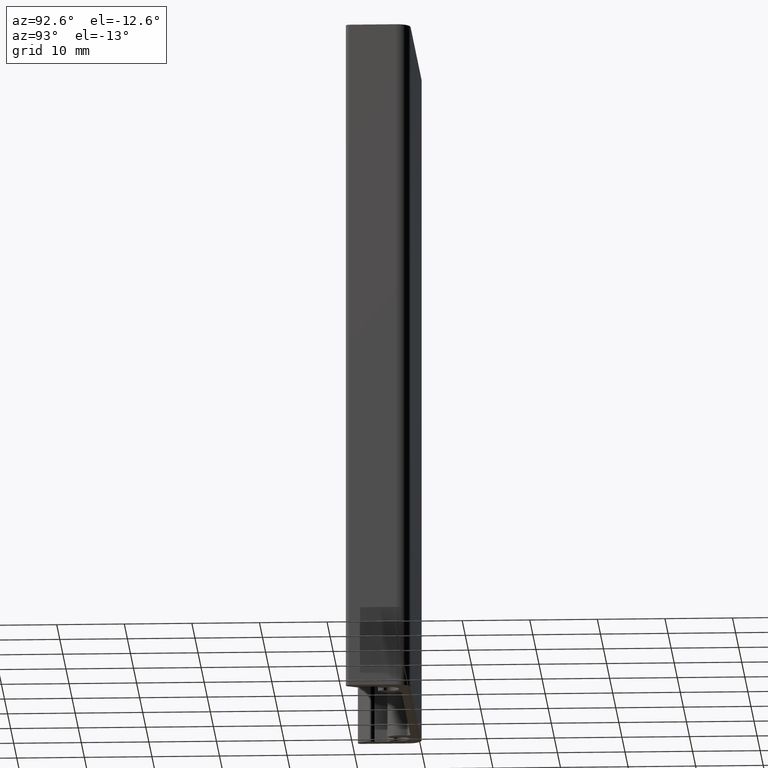
[diagram: clean part render]
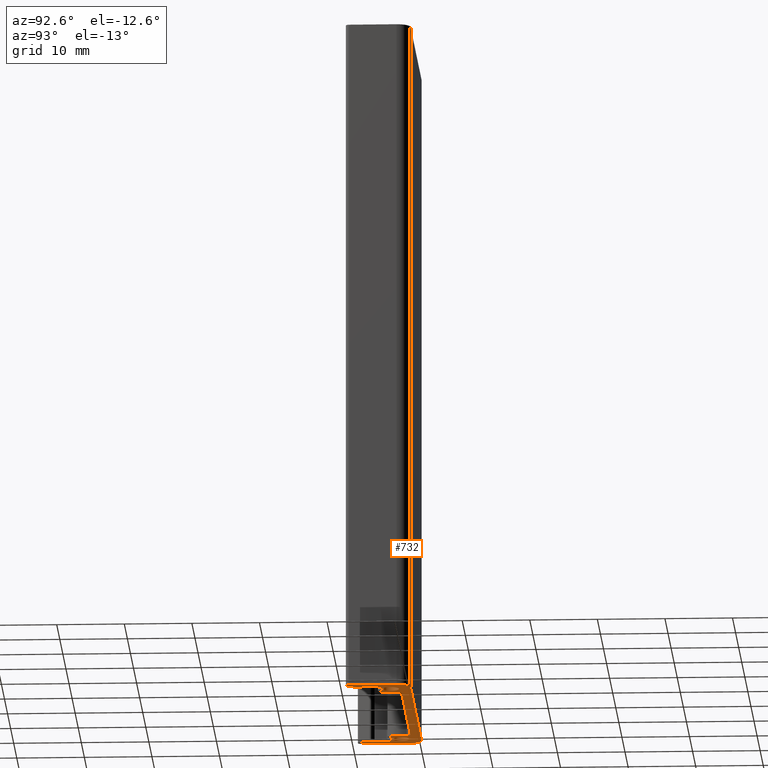
[diagram: same view with one face highlighted and labeled with its STEP entity id]
A machine part, auxiliary view. The second image highlights one B-rep face of the part: STEP entity #732.
In plain terms, the highlighted planar face has unit normal (0, 0, 1).
Its self-contained STEP definition (entity closure, byte-faithful):
#28=PLANE('',#816);
#66=FACE_OUTER_BOUND('',#104,.T.);
#104=EDGE_LOOP('',(#599,#600,#601,#602,#603,#604,#605,#606,#607,#608,#609,
#610,#611,#612,#613,#614,#615,#616,#617,#618,#619,#620,#621,#622,#623,#624,
#625,#626,#627,#628,#629,#630,#631,#632,#633,#634));
#112=LINE('',#1075,#176);
#118=LINE('',#1099,#182);
#124=LINE('',#1123,#188);
#129=LINE('',#1141,#193);
#132=LINE('',#1147,#196);
#136=LINE('',#1159,#200);
#140=LINE('',#1171,#204);
#144=LINE('',#1178,#208);
#150=LINE('',#1202,#214);
#155=LINE('',#1220,#219);
#158=LINE('',#1226,#222);
#162=LINE('',#1238,#226);
#166=LINE('',#1250,#230);
#169=LINE('',#1264,#233);
#176=VECTOR('',#846,28.3431457504998);
#182=VECTOR('',#872,0.415801040542399);
#188=VECTOR('',#898,0.19038011818812);
#193=VECTOR('',#917,1.77783328947104);
#196=VECTOR('',#922,0.582842712490683);
#200=VECTOR('',#934,1.68430994774901);
#204=VECTOR('',#946,6.99999999999857);
#208=VECTOR('',#952,0.415801040537529);
#214=VECTOR('',#978,0.190380118148697);
#219=VECTOR('',#997,1.77783328945031);
#222=VECTOR('',#1002,0.582842712467854);
#226=VECTOR('',#1014,1.68430994772338);
#230=VECTOR('',#1026,6.99999999998679);
#233=VECTOR('',#1043,36.);
#236=CIRCLE('',#739,0.5);
#238=CIRCLE('',#742,2.50000000000608);
#240=CIRCLE('',#745,0.5);
#242=CIRCLE('',#749,0.5);
#244=CIRCLE('',#752,2.50000000000608);
#246=CIRCLE('',#755,0.5);
#248=CIRCLE('',#759,0.299999999999853);
#250=CIRCLE('',#762,1.24999999999524);
#252=CIRCLE('',#765,0.299999999999853);
#254=CIRCLE('',#769,0.499999999999971);
#256=CIRCLE('',#772,0.5);
#258=CIRCLE('',#777,0.299999999999853);
#260=CIRCLE('',#781,0.5);
#262=CIRCLE('',#786,0.299999999999853);
#264=CIRCLE('',#789,1.24999999999524);
#266=CIRCLE('',#792,0.299999999999853);
#268=CIRCLE('',#796,0.5);
#270=CIRCLE('',#799,0.5);
#272=CIRCLE('',#804,0.299999999999853);
#274=CIRCLE('',#808,0.5);
#276=CIRCLE('',#812,2.);
#278=CIRCLE('',#815,2.);
#281=VERTEX_POINT('',#1054);
#282=VERTEX_POINT('',#1056);
#284=VERTEX_POINT('',#1062);
#286=VERTEX_POINT('',#1068);
#288=VERTEX_POINT('',#1074);
#290=VERTEX_POINT('',#1080);
#292=VERTEX_POINT('',#1086);
#294=VERTEX_POINT('',#1092);
#296=VERTEX_POINT('',#1098);
#298=VERTEX_POINT('',#1104);
#300=VERTEX_POINT('',#1110);
#302=VERTEX_POINT('',#1116);
#304=VERTEX_POINT('',#1122);
#306=VERTEX_POINT('',#1128);
#308=VERTEX_POINT('',#1134);
#310=VERTEX_POINT('',#1140);
#312=VERTEX_POINT('',#1146);
#314=VERTEX_POINT('',#1152);
#316=VERTEX_POINT('',#1158);
#318=VERTEX_POINT('',#1164);
#320=VERTEX_POINT('',#1170);
#322=VERTEX_POINT('',#1176);
#324=VERTEX_POINT('',#1182);
#326=VERTEX_POINT('',#1188);
#328=VERTEX_POINT('',#1194);
#330=VERTEX_POINT('',#1200);
#332=VERTEX_POINT('',#1206);
#334=VERTEX_POINT('',#1212);
#336=VERTEX_POINT('',#1218);
#338=VERTEX_POINT('',#1224);
#340=VERTEX_POINT('',#1230);
#342=VERTEX_POINT('',#1236);
#344=VERTEX_POINT('',#1242);
#346=VERTEX_POINT('',#1248);
#348=VERTEX_POINT('',#1254);
#350=VERTEX_POINT('',#1260);
#353=EDGE_CURVE('',#282,#281,#236,.T.);
#356=EDGE_CURVE('',#284,#282,#238,.T.);
#359=EDGE_CURVE('',#286,#284,#240,.T.);
#362=EDGE_CURVE('',#288,#286,#112,.T.);
#365=EDGE_CURVE('',#290,#288,#242,.T.);
#368=EDGE_CURVE('',#292,#290,#244,.T.);
#371=EDGE_CURVE('',#294,#292,#246,.T.);
#374=EDGE_CURVE('',#296,#294,#118,.T.);
#377=EDGE_CURVE('',#298,#296,#248,.T.);
#380=EDGE_CURVE('',#300,#298,#250,.T.);
#383=EDGE_CURVE('',#302,#300,#252,.T.);
#386=EDGE_CURVE('',#304,#302,#124,.T.);
#389=EDGE_CURVE('',#306,#304,#254,.T.);
#392=EDGE_CURVE('',#308,#306,#256,.T.);
#395=EDGE_CURVE('',#310,#308,#129,.T.);
#398=EDGE_CURVE('',#312,#310,#132,.T.);
#401=EDGE_CURVE('',#314,#312,#258,.T.);
#404=EDGE_CURVE('',#316,#314,#136,.T.);
#407=EDGE_CURVE('',#318,#316,#260,.T.);
#410=EDGE_CURVE('',#320,#318,#140,.T.);
#414=EDGE_CURVE('',#281,#322,#144,.T.);
#417=EDGE_CURVE('',#322,#324,#262,.T.);
#420=EDGE_CURVE('',#324,#326,#264,.T.);
#423=EDGE_CURVE('',#326,#328,#266,.T.);
#426=EDGE_CURVE('',#328,#330,#150,.T.);
#429=EDGE_CURVE('',#330,#332,#268,.T.);
#432=EDGE_CURVE('',#332,#334,#270,.T.);
#435=EDGE_CURVE('',#334,#336,#155,.T.);
#438=EDGE_CURVE('',#336,#338,#158,.T.);
#441=EDGE_CURVE('',#338,#340,#272,.T.);
#444=EDGE_CURVE('',#340,#342,#162,.T.);
#447=EDGE_CURVE('',#342,#344,#274,.T.);
#450=EDGE_CURVE('',#344,#346,#166,.T.);
#453=EDGE_CURVE('',#346,#348,#276,.T.);
#455=EDGE_CURVE('',#350,#320,#278,.T.);
#457=EDGE_CURVE('',#348,#350,#169,.T.);
#599=ORIENTED_EDGE('',*,*,#455,.T.);
#600=ORIENTED_EDGE('',*,*,#410,.T.);
#601=ORIENTED_EDGE('',*,*,#407,.T.);
#602=ORIENTED_EDGE('',*,*,#404,.T.);
#603=ORIENTED_EDGE('',*,*,#401,.T.);
#604=ORIENTED_EDGE('',*,*,#398,.T.);
#605=ORIENTED_EDGE('',*,*,#395,.T.);
#606=ORIENTED_EDGE('',*,*,#392,.T.);
#607=ORIENTED_EDGE('',*,*,#389,.T.);
#608=ORIENTED_EDGE('',*,*,#386,.T.);
#609=ORIENTED_EDGE('',*,*,#383,.T.);
#610=ORIENTED_EDGE('',*,*,#380,.T.);
#611=ORIENTED_EDGE('',*,*,#377,.T.);
#612=ORIENTED_EDGE('',*,*,#374,.T.);
#613=ORIENTED_EDGE('',*,*,#371,.T.);
#614=ORIENTED_EDGE('',*,*,#368,.T.);
#615=ORIENTED_EDGE('',*,*,#365,.T.);
#616=ORIENTED_EDGE('',*,*,#362,.T.);
#617=ORIENTED_EDGE('',*,*,#359,.T.);
#618=ORIENTED_EDGE('',*,*,#356,.T.);
#619=ORIENTED_EDGE('',*,*,#353,.T.);
#620=ORIENTED_EDGE('',*,*,#414,.T.);
#621=ORIENTED_EDGE('',*,*,#417,.T.);
#622=ORIENTED_EDGE('',*,*,#420,.T.);
#623=ORIENTED_EDGE('',*,*,#423,.T.);
#624=ORIENTED_EDGE('',*,*,#426,.T.);
#625=ORIENTED_EDGE('',*,*,#429,.T.);
#626=ORIENTED_EDGE('',*,*,#432,.T.);
#627=ORIENTED_EDGE('',*,*,#435,.T.);
#628=ORIENTED_EDGE('',*,*,#438,.T.);
#629=ORIENTED_EDGE('',*,*,#441,.T.);
#630=ORIENTED_EDGE('',*,*,#444,.T.);
#631=ORIENTED_EDGE('',*,*,#447,.T.);
#632=ORIENTED_EDGE('',*,*,#450,.T.);
#633=ORIENTED_EDGE('',*,*,#453,.T.);
#634=ORIENTED_EDGE('',*,*,#457,.T.);
#732=ADVANCED_FACE('',(#66),#28,.F.);
#739=AXIS2_PLACEMENT_3D('',#1057,#826,#827);
#742=AXIS2_PLACEMENT_3D('',#1063,#833,#834);
#745=AXIS2_PLACEMENT_3D('',#1069,#840,#841);
#749=AXIS2_PLACEMENT_3D('',#1081,#852,#853);
#752=AXIS2_PLACEMENT_3D('',#1087,#859,#860);
#755=AXIS2_PLACEMENT_3D('',#1093,#866,#867);
#759=AXIS2_PLACEMENT_3D('',#1105,#878,#879);
#762=AXIS2_PLACEMENT_3D('',#1111,#885,#886);
#765=AXIS2_PLACEMENT_3D('',#1117,#892,#893);
#769=AXIS2_PLACEMENT_3D('',#1129,#904,#905);
#772=AXIS2_PLACEMENT_3D('',#1135,#911,#912);
#777=AXIS2_PLACEMENT_3D('',#1153,#928,#929);
#781=AXIS2_PLACEMENT_3D('',#1165,#940,#941);
#786=AXIS2_PLACEMENT_3D('',#1184,#958,#959);
#789=AXIS2_PLACEMENT_3D('',#1190,#965,#966);
#792=AXIS2_PLACEMENT_3D('',#1196,#972,#973);
#796=AXIS2_PLACEMENT_3D('',#1208,#984,#985);
#799=AXIS2_PLACEMENT_3D('',#1214,#991,#992);
#804=AXIS2_PLACEMENT_3D('',#1232,#1008,#1009);
#808=AXIS2_PLACEMENT_3D('',#1244,#1020,#1021);
#812=AXIS2_PLACEMENT_3D('',#1256,#1032,#1033);
#815=AXIS2_PLACEMENT_3D('',#1261,#1038,#1039);
#816=AXIS2_PLACEMENT_3D('',#1263,#1041,#1042);
#826=DIRECTION('center_axis',(0.,0.,-1.));
#827=DIRECTION('ref_axis',(0.86602540378473,0.499999999999496,0.));
#833=DIRECTION('center_axis',(0.,0.,-1.));
#834=DIRECTION('ref_axis',(-0.70062926923846,0.713525491546295,0.));
#840=DIRECTION('center_axis',(0.,0.,1.));
#841=DIRECTION('ref_axis',(4.44089209850064E-15,1.,0.));
#846=DIRECTION('',(-1.,2.64794448454392E-14,0.));
#852=DIRECTION('center_axis',(0.,0.,1.));
#853=DIRECTION('ref_axis',(0.942809041595373,-0.333333333295689,0.));
#859=DIRECTION('center_axis',(0.,0.,-1.));
#860=DIRECTION('ref_axis',(0.942809041595373,-0.333333333295689,0.));
#866=DIRECTION('center_axis',(0.,0.,-1.));
#867=DIRECTION('ref_axis',(0.700629269209054,0.713525491575169,0.));
#872=DIRECTION('',(-0.49999999999958,-0.866025403784681,0.));
#878=DIRECTION('center_axis',(0.,0.,-1.));
#879=DIRECTION('ref_axis',(-0.866025403784678,0.499999999999585,0.));
#885=DIRECTION('center_axis',(0.,0.,1.));
#886=DIRECTION('ref_axis',(0.658163185407506,-0.752875302672524,0.));
#892=DIRECTION('center_axis',(0.,0.,-1.));
#893=DIRECTION('ref_axis',(0.658163185407506,-0.752875302672524,0.));
#898=DIRECTION('',(-0.499999999999504,0.866025403784725,0.));
#904=DIRECTION('center_axis',(0.,0.,-1.));
#905=DIRECTION('ref_axis',(0.866025403784728,0.499999999999498,0.));
#911=DIRECTION('center_axis',(0.,0.,1.));
#912=DIRECTION('ref_axis',(1.,0.,0.));
#917=DIRECTION('',(0.,1.,0.));
#922=DIRECTION('',(0.707106781186746,0.707106781186349,0.));
#928=DIRECTION('center_axis',(0.,0.,-1.));
#929=DIRECTION('ref_axis',(0.707106781186355,-0.70710678118674,0.));
#934=DIRECTION('',(-0.490218619946178,0.871599509326425,0.));
#940=DIRECTION('center_axis',(0.,0.,-1.));
#941=DIRECTION('ref_axis',(0.871599509326422,0.490218619946183,0.));
#946=DIRECTION('',(0.,-1.,0.));
#952=DIRECTION('',(-0.499999999999509,0.866025403784722,0.));
#958=DIRECTION('center_axis',(0.,0.,-1.));
#959=DIRECTION('ref_axis',(0.658163185457281,-0.752875302629011,0.));
#965=DIRECTION('center_axis',(0.,0.,1.));
#966=DIRECTION('ref_axis',(0.658163185457277,-0.752875302629014,0.));
#972=DIRECTION('center_axis',(0.,0.,-1.));
#973=DIRECTION('ref_axis',(-0.866025403784684,0.499999999999575,0.));
#978=DIRECTION('',(-0.499999999999588,-0.866025403784676,0.));
#984=DIRECTION('center_axis',(0.,0.,-1.));
#985=DIRECTION('ref_axis',(-0.0885480772385439,0.996071904039742,0.));
#991=DIRECTION('center_axis',(0.,0.,1.));
#992=DIRECTION('ref_axis',(-0.0885480772385483,0.996071904039742,0.));
#997=DIRECTION('',(0.,-1.,0.));
#1002=DIRECTION('',(0.707106781186349,-0.707106781186746,0.));
#1008=DIRECTION('center_axis',(0.,0.,-1.));
#1009=DIRECTION('ref_axis',(-0.871599509326303,0.490218619946395,0.));
#1014=DIRECTION('',(-0.490218619946385,-0.871599509326309,0.));
#1020=DIRECTION('center_axis',(0.,0.,-1.));
#1021=DIRECTION('ref_axis',(1.,0.,0.));
#1026=DIRECTION('',(6.34413156929858E-16,1.,0.));
#1032=DIRECTION('center_axis',(0.,0.,-1.));
#1033=DIRECTION('ref_axis',(-2.22044604925032E-15,-1.,0.));
#1038=DIRECTION('center_axis',(0.,0.,-1.));
#1039=DIRECTION('ref_axis',(-1.,0.,0.));
#1041=DIRECTION('center_axis',(0.,0.,1.));
#1042=DIRECTION('ref_axis',(1.,0.,0.));
#1043=DIRECTION('',(1.,4.33257765707378E-16,0.));
#1054=CARTESIAN_POINT('',(-16.0317541634156,-4.67705098307242,0.));
#1056=CARTESIAN_POINT('',(-15.248426826904,-4.78381372884582,0.));
#1057=CARTESIAN_POINT('Origin',(-15.5987414615232,-4.42705098307268,0.));
#1062=CARTESIAN_POINT('',(-14.6429773960383,-2.16666666665509,0.));
#1063=CARTESIAN_POINT('Origin',(-17.0000000000044,-2.99999999997575,0.));
#1068=CARTESIAN_POINT('',(-14.1715728752463,-1.49999999999136,0.));
#1069=CARTESIAN_POINT('Origin',(-14.1715728752463,-1.99999999999136,0.));
#1074=CARTESIAN_POINT('',(14.1715728752536,-1.49999999999211,0.));
#1075=CARTESIAN_POINT('',(-7.08578643762307,-1.49999999999155,0.));
#1080=CARTESIAN_POINT('',(14.6429773960512,-2.1666666666392,0.));
#1081=CARTESIAN_POINT('Origin',(14.1715728752535,-1.99999999999136,0.));
#1086=CARTESIAN_POINT('',(15.2484268270185,-4.78381372882271,0.));
#1087=CARTESIAN_POINT('Origin',(17.0000000000454,-2.99999999988045,0.));
#1092=CARTESIAN_POINT('',(16.0317541635154,-4.67705098303492,0.));
#1093=CARTESIAN_POINT('Origin',(15.598741461623,-4.42705098303513,0.));
#1098=CARTESIAN_POINT('',(16.2396546837864,-4.3169567190051,0.));
#1099=CARTESIAN_POINT('',(13.8496112044016,-8.45663345760287,0.));
#1104=CARTESIAN_POINT('',(16.1772960182764,-3.94109412820634,0.));
#1105=CARTESIAN_POINT('Origin',(15.9798470626511,-4.1669567190053,0.));
#1110=CARTESIAN_POINT('',(17.8227039818016,-3.94109412821751,0.));
#1111=CARTESIAN_POINT('Origin',(17.0000000000454,-2.99999999988045,0.));
#1116=CARTESIAN_POINT('',(17.7603453162885,-4.31695671901894,0.));
#1117=CARTESIAN_POINT('Origin',(18.0201529374238,-4.16695671901916,0.));
#1122=CARTESIAN_POINT('',(17.8555353753825,-4.48183073774539,0.));
#1123=CARTESIAN_POINT('',(15.7964385355332,-0.915370393417217,0.));
#1128=CARTESIAN_POINT('',(18.2442740386369,-4.72986668976386,0.));
#1129=CARTESIAN_POINT('Origin',(18.2885480772748,-4.23183073774564,0.));
#1134=CARTESIAN_POINT('',(18.699999999999,-5.22790264178207,0.));
#1135=CARTESIAN_POINT('Origin',(18.199999999999,-5.22790264178207,0.));
#1140=CARTESIAN_POINT('',(18.699999999999,-7.00573593125311,0.));
#1141=CARTESIAN_POINT('',(18.699999999999,-5.36395132089103,0.));
#1146=CARTESIAN_POINT('',(18.2878679656315,-7.41786796562031,0.));
#1147=CARTESIAN_POINT('',(14.4014339828099,-11.3043019484398,0.));
#1152=CARTESIAN_POINT('',(18.2385201471895,-7.77706558596001,0.));
#1153=CARTESIAN_POINT('Origin',(18.4999999999873,-7.62999999997623,0.));
#1158=CARTESIAN_POINT('',(19.0642002453367,-9.24510930997166,0.));
#1159=CARTESIAN_POINT('',(15.560565776616,-3.01571295588907,0.));
#1164=CARTESIAN_POINT('',(19.9999999999999,-8.99999999999857,0.));
#1165=CARTESIAN_POINT('Origin',(19.4999999999999,-8.99999999999857,0.));
#1170=CARTESIAN_POINT('',(19.9999999999999,-2.,0.));
#1171=CARTESIAN_POINT('',(19.9999999999999,-7.24999999999928,0.));
#1176=CARTESIAN_POINT('',(-16.2396546836842,-4.3169567190468,0.));
#1178=CARTESIAN_POINT('',(-13.9535614644573,-8.2765863255916,0.));
#1182=CARTESIAN_POINT('',(-16.177296018186,-3.94109412825844,0.));
#1184=CARTESIAN_POINT('Origin',(-15.9798470625489,-4.16695671904703,0.));
#1188=CARTESIAN_POINT('',(-17.8227039817763,-3.94109412829919,0.));
#1190=CARTESIAN_POINT('Origin',(-17.0000000000044,-2.99999999997575,0.));
#1194=CARTESIAN_POINT('',(-17.7603453162669,-4.31695671909737,0.));
#1196=CARTESIAN_POINT('Origin',(-18.0201529374022,-4.16695671909757,0.));
#1200=CARTESIAN_POINT('',(-17.8555353753412,-4.48183073778967,0.));
#1202=CARTESIAN_POINT('',(-15.8440335650337,-0.997807402816582,0.));
#1206=CARTESIAN_POINT('',(-18.2442740386142,-4.72986668980975,0.));
#1208=CARTESIAN_POINT('Origin',(-18.2885480772335,-4.23183073778988,0.));
#1212=CARTESIAN_POINT('',(-18.6999999999949,-5.22790264182962,0.));
#1214=CARTESIAN_POINT('Origin',(-18.199999999995,-5.22790264182962,0.));
#1218=CARTESIAN_POINT('',(-18.6999999999949,-7.00573593127993,0.));
#1220=CARTESIAN_POINT('',(-18.6999999999949,-6.25286796563996,0.));
#1224=CARTESIAN_POINT('',(-18.2878679656439,-7.41786796563122,0.));
#1226=CARTESIAN_POINT('',(-14.1953679656433,-11.5103679656341,0.));
#1230=CARTESIAN_POINT('',(-18.238520147202,-7.77706558597087,0.));
#1232=CARTESIAN_POINT('Origin',(-18.4999999999998,-7.62999999998702,0.));
#1236=CARTESIAN_POINT('',(-19.064200245337,-9.24510930995999,0.));
#1238=CARTESIAN_POINT('',(-15.9734058256901,-3.7497348178868,0.));
#1242=CARTESIAN_POINT('',(-20.0000000000001,-8.9999999999868,0.));
#1244=CARTESIAN_POINT('Origin',(-19.5000000000001,-8.9999999999868,0.));
#1248=CARTESIAN_POINT('',(-20.0000000000001,-2.,0.));
#1250=CARTESIAN_POINT('',(-20.0000000000001,-3.74999999999999,0.));
#1254=CARTESIAN_POINT('',(-18.0000000000001,5.55111512312578E-16,0.));
#1256=CARTESIAN_POINT('Origin',(-18.0000000000001,-2.,0.));
#1260=CARTESIAN_POINT('',(17.9999999999999,7.21644966006352E-15,0.));
#1261=CARTESIAN_POINT('Origin',(17.9999999999999,-2.,0.));
#1263=CARTESIAN_POINT('Origin',(4.44089209850063E-15,-5.49999999999999,
0.));
#1264=CARTESIAN_POINT('',(10.25,8.88178419700125E-15,0.));